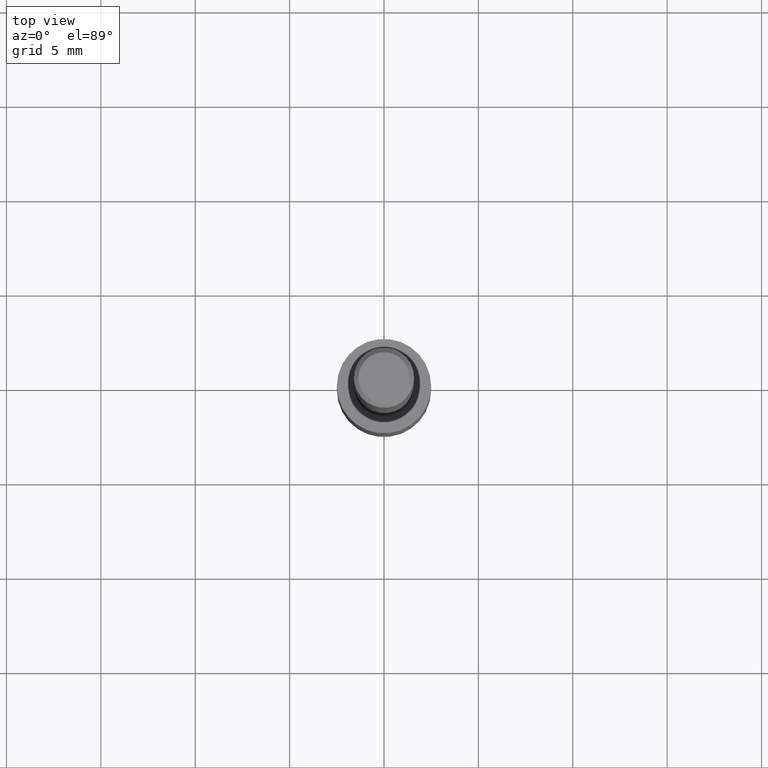
[diagram: clean part render]
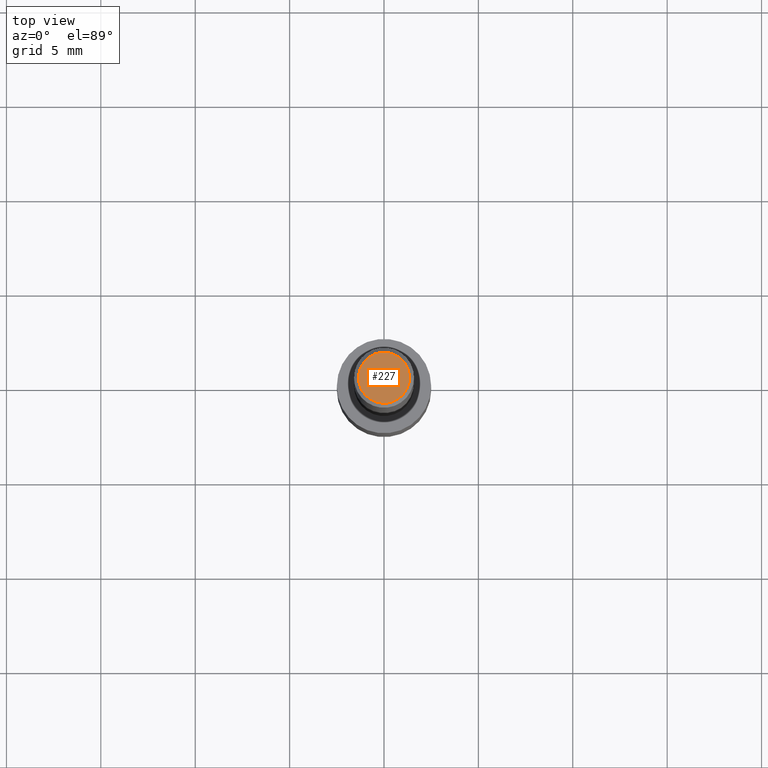
[diagram: same view with one face highlighted and labeled with its STEP entity id]
A machine part, top view. The second image highlights one B-rep face of the part: STEP entity #227.
In plain terms, the highlighted planar face has unit normal (0, -0, -1).
Its self-contained STEP definition (entity closure, byte-faithful):
#5 = CIRCLE ( 'NONE', #189, 0.05312499999999999861 ) ;
#29 = CIRCLE ( 'NONE', #229, 0.05312499999999999861 ) ;
#32 = CARTESIAN_POINT ( 'NONE',  ( 0.05312499999999999861, -4.129888592719939842E-16, 3.061617000609493422E-21 ) ) ;
#34 = FACE_OUTER_BOUND ( 'NONE', #105, .T. ) ;
#56 = DIRECTION ( 'NONE',  ( -2.445468806185136597E-29, 3.491481338843145583E-15, 1.000000000000000000 ) ) ;
#79 = DIRECTION ( 'NONE',  ( 1.000000000000000000, -6.982962677686266711E-15, 4.876176628004948512E-29 ) ) ;
#100 = CARTESIAN_POINT ( 'NONE',  ( -3.743544432386672853E-50, 5.344789307371238476E-36, 1.530808498934197599E-21 ) ) ;
#105 = EDGE_LOOP ( 'NONE', ( #242, #153 ) ) ;
#109 = EDGE_CURVE ( 'NONE', #116, #123, #29, .T. ) ;
#116 = VERTEX_POINT ( 'NONE', #183 ) ;
#123 = VERTEX_POINT ( 'NONE', #32 ) ;
#153 = ORIENTED_EDGE ( 'NONE', *, *, #182, .T. ) ;
#156 = PLANE ( 'NONE',  #230 ) ;
#182 = EDGE_CURVE ( 'NONE', #123, #116, #5, .T. ) ;
#183 = CARTESIAN_POINT ( 'NONE',  ( -0.05312499999999999861, 3.873362110279099094E-16, 3.061616995216862494E-21 ) ) ;
#189 = AXIS2_PLACEMENT_3D ( 'NONE', #237, #290, #207 ) ;
#200 = DIRECTION ( 'NONE',  ( 2.438088387897960049E-29, -3.491481338843145188E-15, -1.000000000000000000 ) ) ;
#207 = DIRECTION ( 'NONE',  ( 1.000000000000000000, -6.982962677686266711E-15, 4.876176628004948512E-29 ) ) ;
#227 = ADVANCED_FACE ( 'NONE', ( #34 ), #156, .F. ) ;
#229 = AXIS2_PLACEMENT_3D ( 'NONE', #321, #56, #79 ) ;
#230 = AXIS2_PLACEMENT_3D ( 'NONE', #100, #200, #295 ) ;
#237 = CARTESIAN_POINT ( 'NONE',  ( -7.487088864773345706E-50, 1.068957861474247695E-35, 3.061616997868395197E-21 ) ) ;
#242 = ORIENTED_EDGE ( 'NONE', *, *, #109, .T. ) ;
#290 = DIRECTION ( 'NONE',  ( -2.445468806185136597E-29, 3.491481338843145583E-15, 1.000000000000000000 ) ) ;
#295 = DIRECTION ( 'NONE',  ( -1.000000000000000000, 6.982962677686265922E-15, -4.876176775795935793E-29 ) ) ;
#321 = CARTESIAN_POINT ( 'NONE',  ( -7.487088864773345706E-50, 1.068957861474247695E-35, 3.061616997868395197E-21 ) ) ;